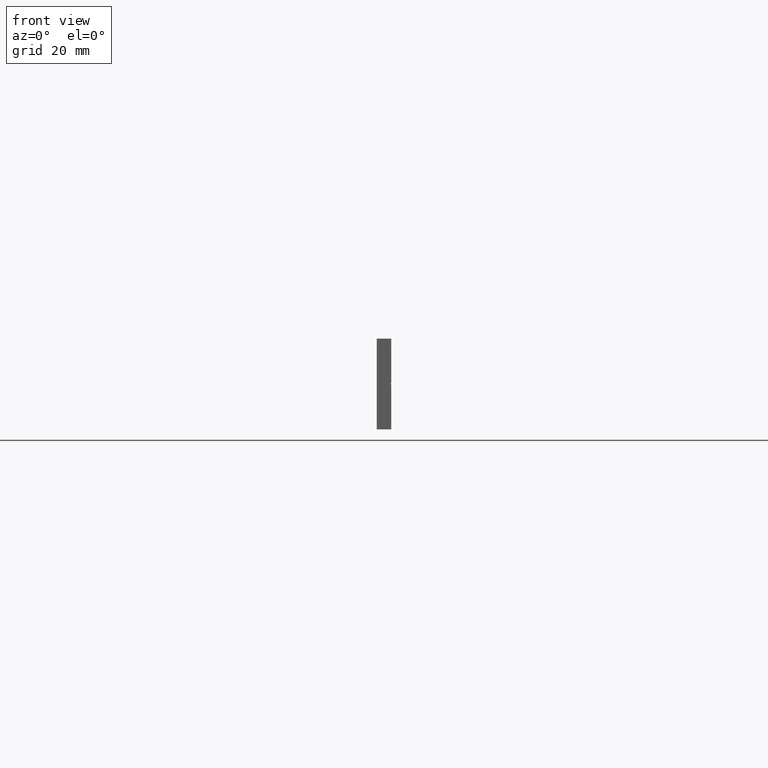
[diagram: clean part render]
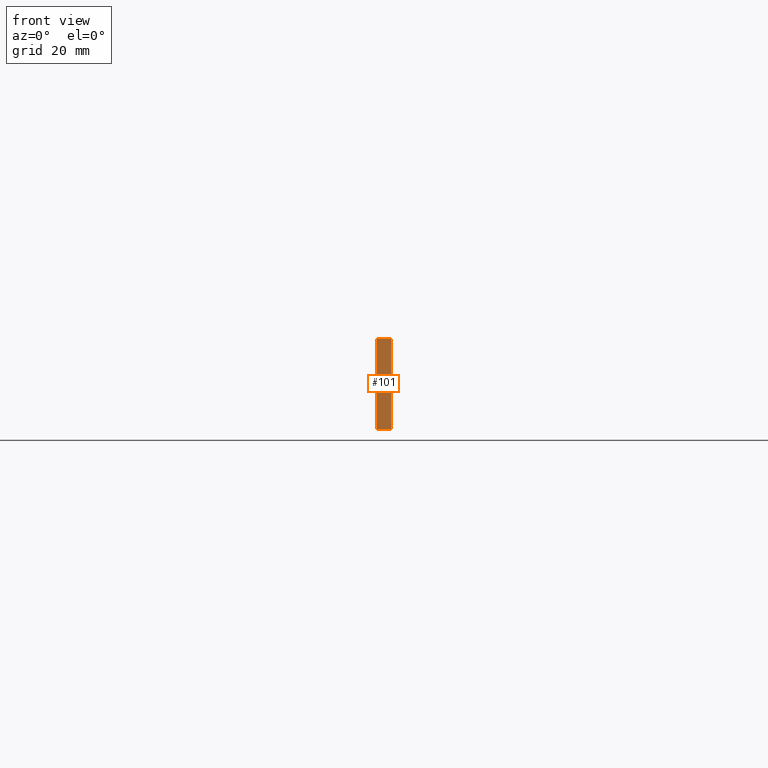
[diagram: same view with one face highlighted and labeled with its STEP entity id]
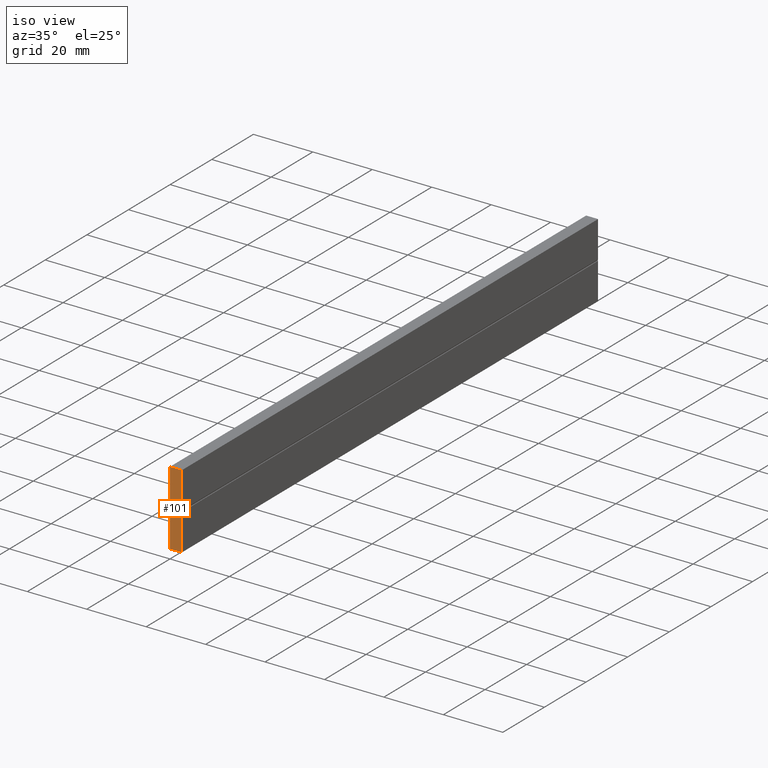
[diagram: same view with one face highlighted and labeled with its STEP entity id]
A machine part, front view. The second image highlights one B-rep face of the part: STEP entity #101.
A second angle (iso view) of the same face is appended — the face is thin or edge-on in the first view.
In plain terms, the highlighted face is a freeform B-spline surface patch.
Its self-contained STEP definition (entity closure, byte-faithful):
#44=CARTESIAN_POINT('',(-0.199799992247224,-1.776357E-015,26.248749951545150));
#45=CARTESIAN_POINT('',(4.199800099535585,-1.776357E-015,26.248749951545150));
#46=CARTESIAN_POINT('',(-0.199799992247224,-1.776357E-015,-1.248750622097403));
#47=CARTESIAN_POINT('',(4.199800099535585,-1.776357E-015,-1.248750622097403));
#48=B_SPLINE_SURFACE_WITH_KNOTS('',1,1,((#44,#46),(#45,#47)),.UNSPECIFIED.,.F.,.F.,.U.,(2,2),(2,2),(0.0,4.399600091782808),(0.0,27.497500573642551),.UNSPECIFIED.);
#49=CARTESIAN_POINT('',(4.0,0.0,12.749999999968599));
#50=VERTEX_POINT('',#49);
#51=CARTESIAN_POINT('',(4.0,0.0,25.0));
#52=VERTEX_POINT('',#51);
#53=CARTESIAN_POINT('',(4.0,0.0,12.749999999968599));
#54=CARTESIAN_POINT('',(4.0,0.0,25.0));
#55=QUASI_UNIFORM_CURVE('',1,(#53,#54),.UNSPECIFIED.,.F.,.U.);
#56=EDGE_CURVE('',#50,#52,#55,.T.);
#57=ORIENTED_EDGE('',*,*,#56,.T.);
#58=CARTESIAN_POINT('',(0.0,0.0,25.0));
#59=VERTEX_POINT('',#58);
#60=CARTESIAN_POINT('',(4.0,0.0,25.0));
#61=CARTESIAN_POINT('',(0.0,0.0,25.0));
#62=QUASI_UNIFORM_CURVE('',1,(#60,#61),.UNSPECIFIED.,.F.,.U.);
#63=EDGE_CURVE('',#52,#59,#62,.T.);
#64=ORIENTED_EDGE('',*,*,#63,.T.);
#65=CARTESIAN_POINT('',(0.0,0.0,0.0));
#66=VERTEX_POINT('',#65);
#67=CARTESIAN_POINT('',(0.0,0.0,25.0));
#68=CARTESIAN_POINT('',(0.0,0.0,0.0));
#69=QUASI_UNIFORM_CURVE('',1,(#67,#68),.UNSPECIFIED.,.F.,.U.);
#70=EDGE_CURVE('',#59,#66,#69,.T.);
#71=ORIENTED_EDGE('',*,*,#70,.T.);
#72=CARTESIAN_POINT('',(4.0,0.0,0.0));
#73=VERTEX_POINT('',#72);
#74=CARTESIAN_POINT('',(0.0,0.0,0.0));
#75=CARTESIAN_POINT('',(4.0,0.0,0.0));
#76=QUASI_UNIFORM_CURVE('',1,(#74,#75),.UNSPECIFIED.,.F.,.U.);
#77=EDGE_CURVE('',#66,#73,#76,.T.);
#78=ORIENTED_EDGE('',*,*,#77,.T.);
#79=CARTESIAN_POINT('',(4.0,0.0,12.249999999968679));
#80=VERTEX_POINT('',#79);
#81=CARTESIAN_POINT('',(4.0,0.0,0.0));
#82=CARTESIAN_POINT('',(4.0,0.0,12.249999999968679));
#83=QUASI_UNIFORM_CURVE('',1,(#81,#82),.UNSPECIFIED.,.F.,.U.);
#84=EDGE_CURVE('',#73,#80,#83,.T.);
#85=ORIENTED_EDGE('',*,*,#84,.T.);
#86=CARTESIAN_POINT('',(4.000000000000003,0.0,12.749999999968599));
#87=CARTESIAN_POINT('',(3.761904761904823,0.0,12.499999999968640));
#88=CARTESIAN_POINT('',(3.999999999999982,0.0,12.249999999968660));
#96=(BOUNDED_CURVE()B_SPLINE_CURVE(2,(#86,#87,#88),.UNSPECIFIED.,.F.,.U.)CURVE()GEOMETRIC_REPRESENTATION_ITEM()QUASI_UNIFORM_CURVE()RATIONAL_B_SPLINE_CURVE((1.0,0.724137931034537,1.0))REPRESENTATION_ITEM(''));
#97=EDGE_CURVE('',#50,#80,#96,.T.);
#98=ORIENTED_EDGE('',*,*,#97,.F.);
#99=EDGE_LOOP('',(#57,#64,#71,#78,#85,#98));
#100=FACE_OUTER_BOUND('',#99,.T.);
#101=ADVANCED_FACE('',(#100),#48,.F.);